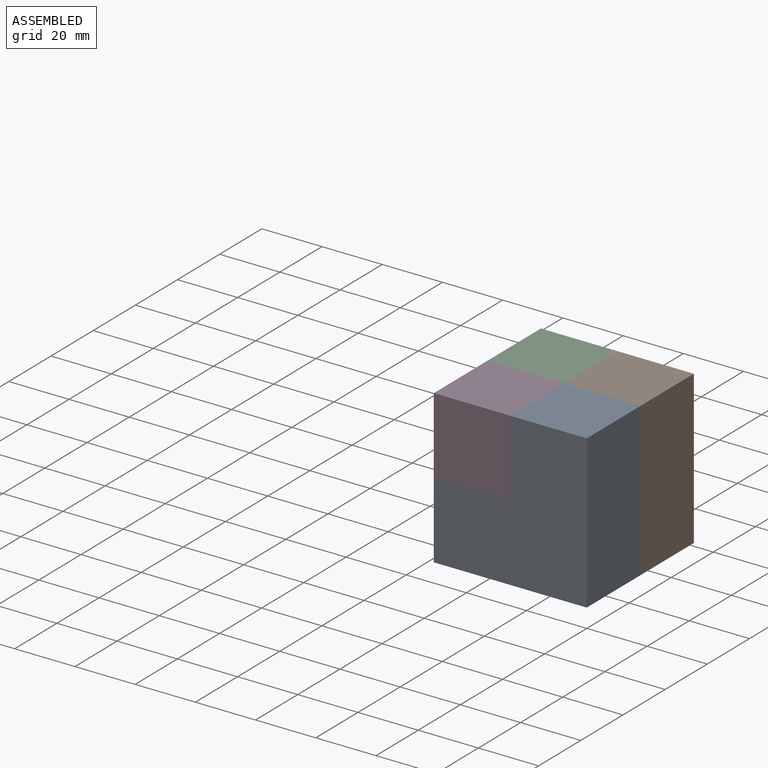
[diagram: assembled view]
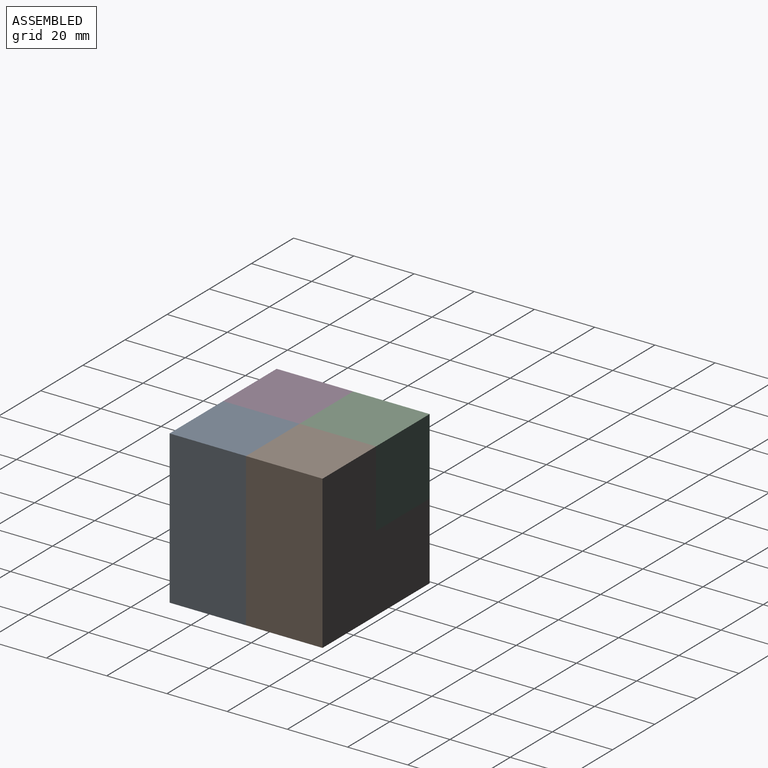
[diagram: assembled view, second angle]
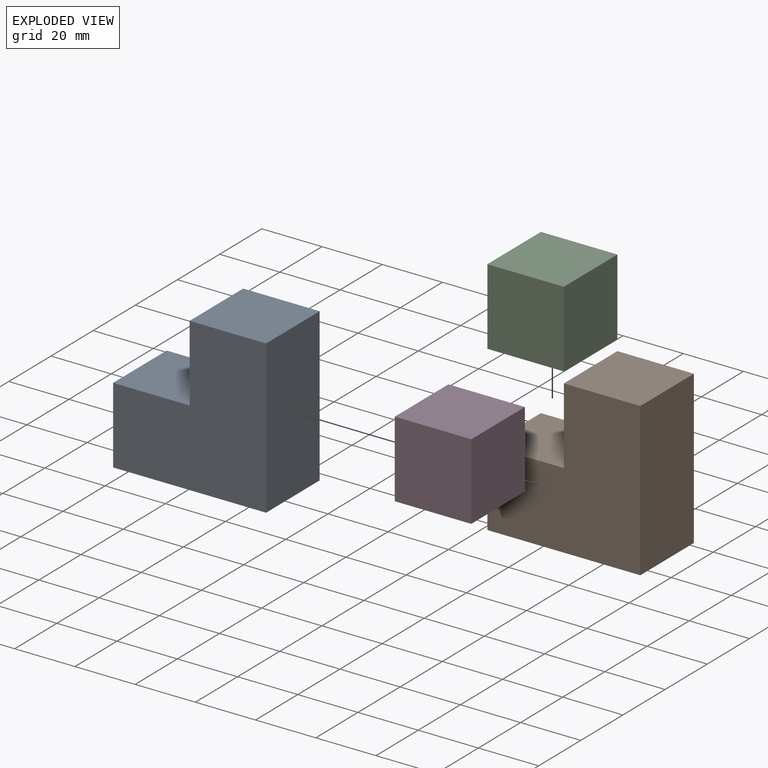
[diagram: exploded view]
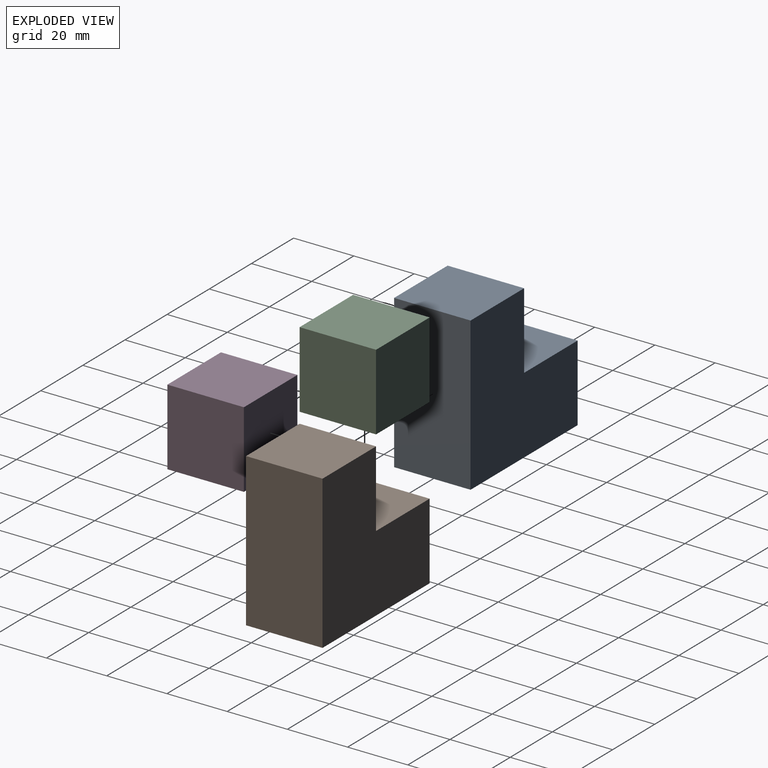
[diagram: exploded view, second angle]
ASSEMBLY  parts=4 mates=3
PART A: 8 faces, bbox 50.8x25.4x50.8 mm
  f0: plane 25.4x25.4mm, normal (0,0,1), area 645.2mm2, adj f1,f5,f6,f7
  f1: plane 25.4x25.4mm, normal (-1,0,0), area 645.2mm2, adj f0,f2,f6,f7
  f2: plane 50.8x25.4mm, normal (0,0,-1), area 1290.3mm2, adj f1,f3,f6,f7
  f3: plane 50.8x25.4mm, normal (1,0,0), area 1290.3mm2, adj f2,f4,f6,f7
  f4: plane 25.4x25.4mm, normal (0,0,1), area 645.2mm2, adj f3,f5,f6,f7
  f5: plane 25.4x25.4mm, normal (-1,0,0), area 645.2mm2, adj f0,f4,f6,f7
  f6: plane 50.8x50.8mm, normal (0,-1,0), area 1935.5mm2, adj f0,f1,f2,f3,f4,f5
  f7: plane 50.8x50.8mm, normal (0,1,0), area 1935.5mm2, adj f0,f1,f2,f3,f4,f5
PART B: same geometry as A
PART C: 6 faces, bbox 25.4x25.4x25.4 mm
  f0: plane 25.4x25.4mm, normal (-1,0,0), area 645.2mm2, adj f1,f3,f4,f5
  f1: plane 25.4x25.4mm, normal (0,-1,0), area 645.2mm2, adj f0,f2,f4,f5
  f2: plane 25.4x25.4mm, normal (1,0,0), area 645.2mm2, adj f1,f3,f4,f5
  f3: plane 25.4x25.4mm, normal (0,1,0), area 645.2mm2, adj f0,f2,f4,f5
  f4: plane 25.4x25.4mm, normal (0,0,1), area 645.2mm2, adj f0,f1,f2,f3
  f5: plane 25.4x25.4mm, normal (0,0,-1), area 645.2mm2, adj f0,f1,f2,f3
PART D: same geometry as C
PLACE A t=(33.94,54.03,-50.52)mm
PLACE B t=(33.94,79.43,-50.52)mm
PLACE C t=(1.92,48.29,-25.12)mm
PLACE D t=(1.92,22.89,-25.12)mm
MATE fastened D.f0 <-> A.f1  axis (-1,0,0) through (-16.86,28.63,-25.12)mm
MATE fastened B.f0 <-> C.f5  axis (0,0,1) through (-4.16,66.73,-25.12)mm
MATE fastened D.f3 <-> B.f6  axis (0,1,0) through (8.54,54.03,-25.12)mm
